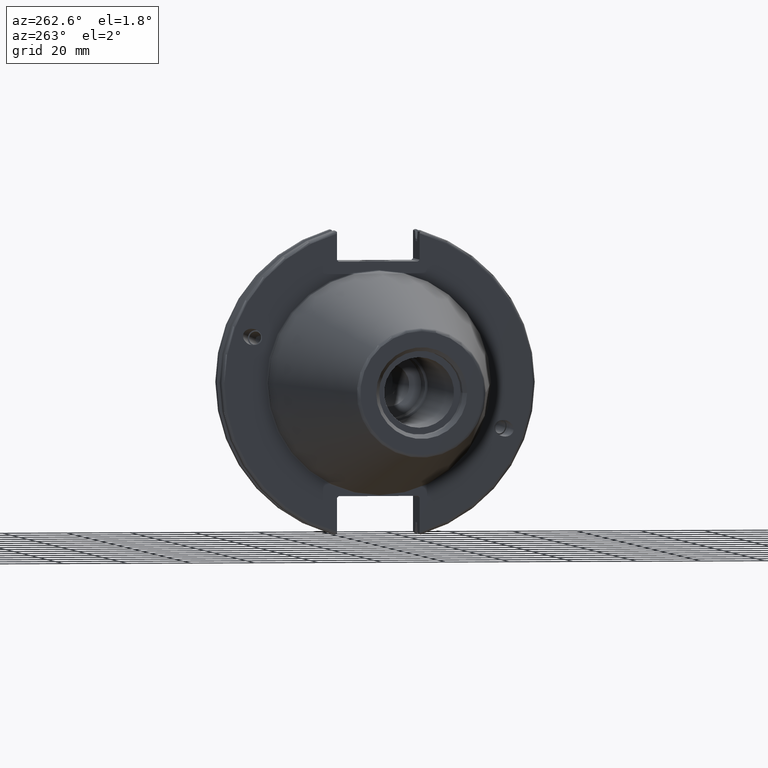
[diagram: clean part render]
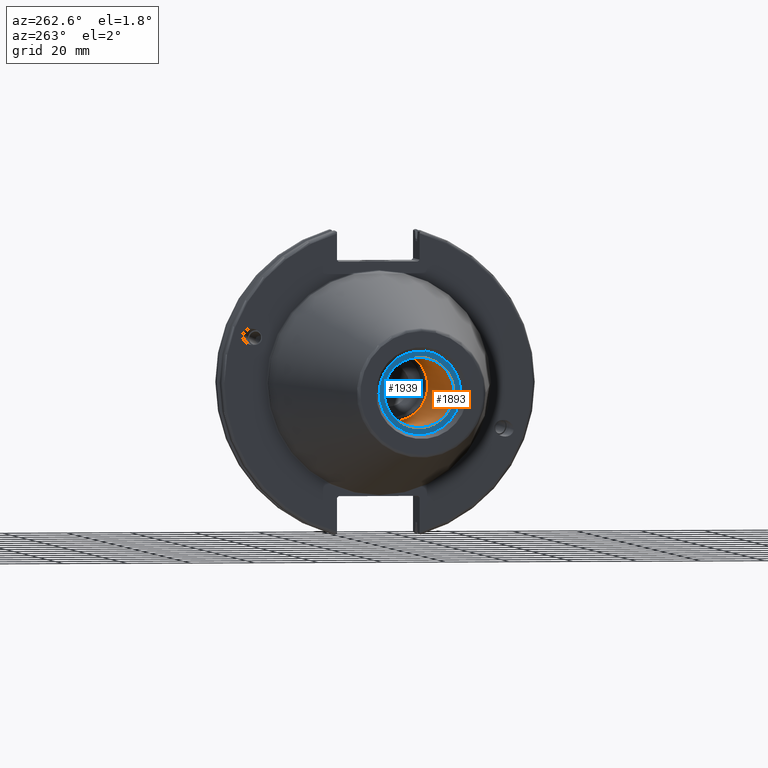
[diagram: same view with the hole feature highlighted: cylindrical wall and planar end face, labeled with their STEP entity ids]
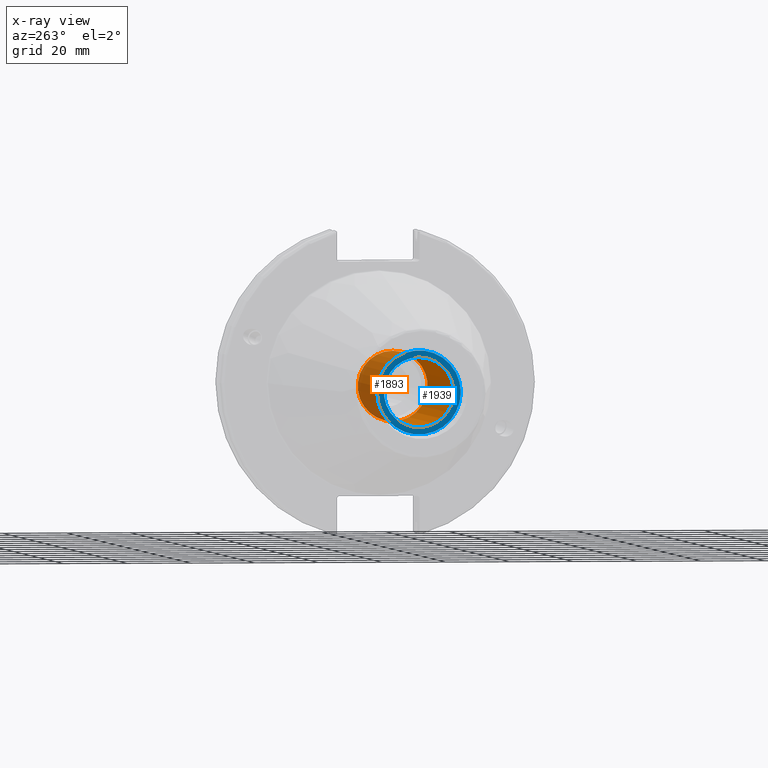
[diagram: x-ray of the same camera — body ghosted, the hole faces saturated]
A machine part, auxiliary view. The highlighted faces form one hole feature of diameter 21.971 mm: the cylindrical wall (entity #1893, orange) and its adjacent planar end face (entity #1939, blue) — they share a circular edge in the B-rep.
The next image is the same camera in x-ray (body ghosted, the hole faces saturated) — the bore reads through the body.
Wall:
#227=FACE_OUTER_BOUND('',#349,.T.);
#349=EDGE_LOOP('',(#1552,#1553,#1554,#1555));
#458=LINE('',#3534,#562);
#562=VECTOR('',#2588,10.9855);
#708=CIRCLE('',#2124,10.9855);
#709=CIRCLE('',#2126,10.9855);
#874=VERTEX_POINT('',#3528);
#875=VERTEX_POINT('',#3532);
#1117=EDGE_CURVE('',#874,#874,#708,.T.);
#1119=EDGE_CURVE('',#875,#875,#709,.T.);
#1120=EDGE_CURVE('',#875,#874,#458,.T.);
#1552=ORIENTED_EDGE('',*,*,#1119,.F.);
#1553=ORIENTED_EDGE('',*,*,#1120,.T.);
#1554=ORIENTED_EDGE('',*,*,#1117,.F.);
#1555=ORIENTED_EDGE('',*,*,#1120,.F.);
#1822=CYLINDRICAL_SURFACE('',#2125,10.9855);
#1893=ADVANCED_FACE('',(#227),#1822,.F.);
#2124=AXIS2_PLACEMENT_3D('',#3529,#2581,#2582);
#2125=AXIS2_PLACEMENT_3D('',#3531,#2584,#2585);
#2126=AXIS2_PLACEMENT_3D('',#3533,#2586,#2587);
#2581=DIRECTION('center_axis',(-1.,0.,0.));
#2582=DIRECTION('ref_axis',(0.,0.,1.));
#2584=DIRECTION('center_axis',(-1.,0.,0.));
#2585=DIRECTION('ref_axis',(0.,0.,1.));
#2586=DIRECTION('center_axis',(1.,0.,0.));
#2587=DIRECTION('ref_axis',(0.,0.,1.));
#2588=DIRECTION('',(1.,0.,0.));
#3528=CARTESIAN_POINT('',(-31.6,-1.34533574120333E-15,-10.9855));
#3529=CARTESIAN_POINT('Origin',(-31.6,0.,0.));
#3531=CARTESIAN_POINT('Origin',(-66.6,0.,0.));
#3532=CARTESIAN_POINT('',(-95.25,1.34533574120333E-15,-10.9855));
#3533=CARTESIAN_POINT('Origin',(-95.25,0.,0.));
#3534=CARTESIAN_POINT('',(-66.6,-1.34533574120333E-15,-10.9855));
End face:
#69=PLANE('',#2201);
#108=FACE_BOUND('',#401,.T.);
#273=FACE_OUTER_BOUND('',#400,.T.);
#400=EDGE_LOOP('',(#1797));
#401=EDGE_LOOP('',(#1798));
#709=CIRCLE('',#2126,10.9855);
#737=CIRCLE('',#2197,13.1);
#875=VERTEX_POINT('',#3532);
#930=VERTEX_POINT('',#3839);
#1119=EDGE_CURVE('',#875,#875,#709,.T.);
#1216=EDGE_CURVE('',#930,#930,#737,.T.);
#1797=ORIENTED_EDGE('',*,*,#1216,.F.);
#1798=ORIENTED_EDGE('',*,*,#1119,.T.);
#1939=ADVANCED_FACE('',(#273,#108),#69,.T.);
#2126=AXIS2_PLACEMENT_3D('',#3533,#2586,#2587);
#2197=AXIS2_PLACEMENT_3D('',#3840,#2773,#2774);
#2201=AXIS2_PLACEMENT_3D('',#3848,#2784,#2785);
#2586=DIRECTION('center_axis',(1.,0.,0.));
#2587=DIRECTION('ref_axis',(0.,0.,1.));
#2773=DIRECTION('center_axis',(1.,0.,0.));
#2774=DIRECTION('ref_axis',(0.,0.,-1.));
#2784=DIRECTION('center_axis',(-1.,0.,0.));
#2785=DIRECTION('ref_axis',(0.,0.,1.));
#3532=CARTESIAN_POINT('',(-95.25,1.34533574120333E-15,-10.9855));
#3533=CARTESIAN_POINT('Origin',(-95.25,0.,0.));
#3839=CARTESIAN_POINT('',(-95.25,-13.1,-1.60428730688303E-15));
#3840=CARTESIAN_POINT('Origin',(-95.25,0.,0.));
#3848=CARTESIAN_POINT('Origin',(-95.25,13.1,0.));